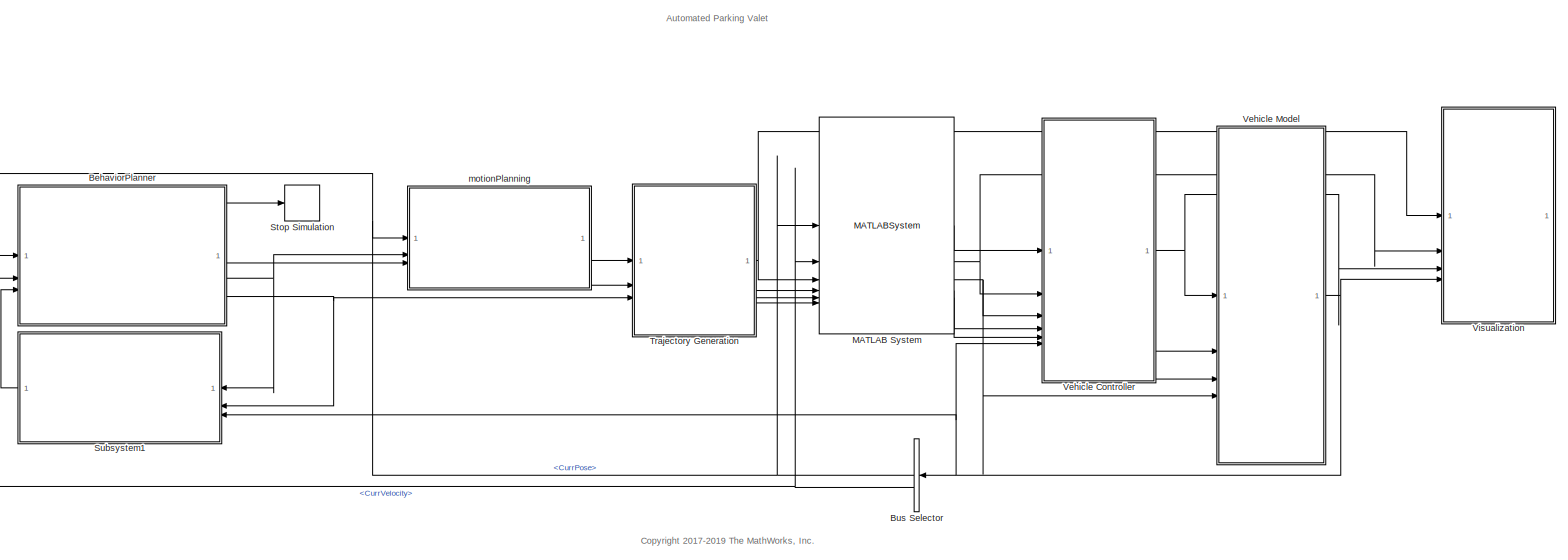
[diagram: root canvas - part 1/1, most of the canvas]
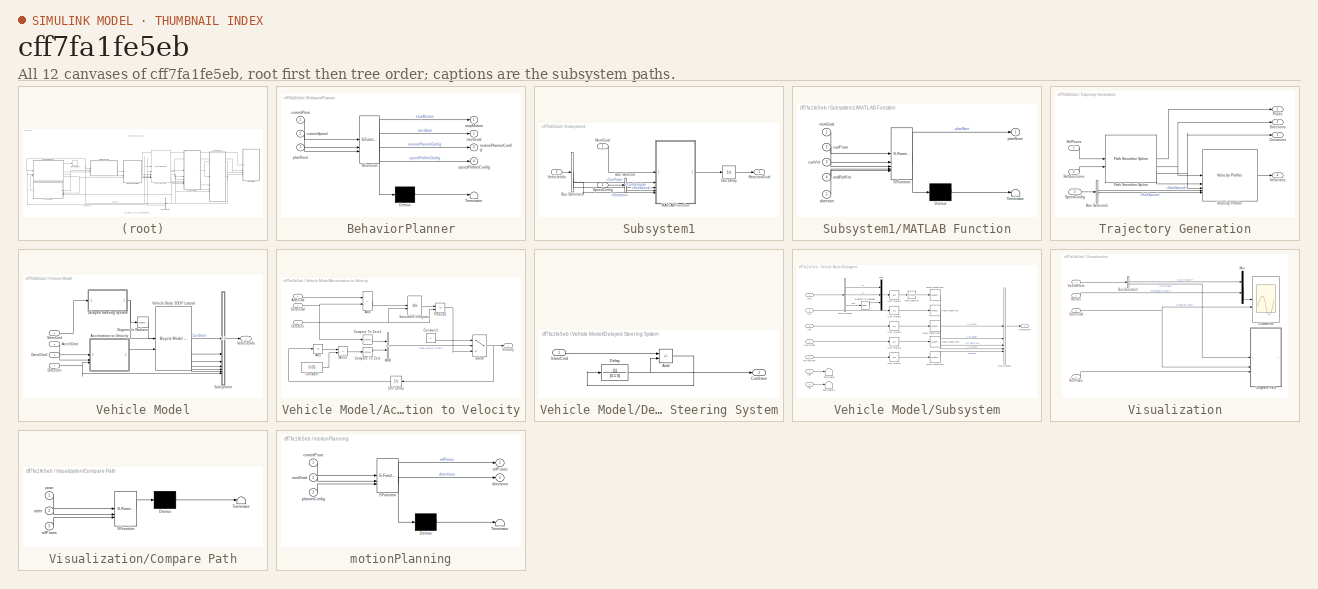
[diagram: thumbnail index - all 12 canvases of the model, root first then tree order]
MODEL slx_cff7fa1fe5eb
KIND model
CONFIG AbsTol = auto
CONFIG EnableMultiTasking = off
CONFIG FixedStep = 1e-3
CONFIG MaxStep = 1e-2
CONFIG MinStep = 1e-3
CONFIG PreLoadFcn = costmap = helperSLCreateCostmap();\nrouteData= load('routePlanSL.mat');\nroutePlan= routeData.routePlan;\nstartPose = routePlan.StartPose(1, :);\ncenterToFront = 1.4;\ncenterToRear = 1.4;\nhelperSLCreateUtilityBus;
CONFIG RelTol = 5e-3
CONFIG SampleTimeConstraint = Unconstrained
CONFIG SolverName = ode23tb
CONFIG StartTime = 0.0
CONFIG StopFcn = clear helperSLVisualizePath
CONFIG StopTime = inf
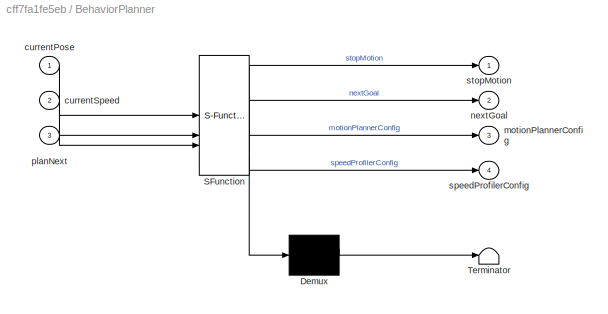
BLOCK [SubSystem] BehaviorPlanner
  ErrorFcn = Stateflow.Translate.translate
  PermitHierarchicalResolution = ExplicitOnly
  SFBlockType = MATLAB Function
  TreatAsAtomicUnit = on
BLOCK [Demux] BehaviorPlanner/ Demux 
  Outputs = 1
BLOCK [S-Function] BehaviorPlanner/ SFunction 
  EnableBusSupport = off
  FunctionName = sf_sfun
  Parameters = StartSpeed,routePlanStruct,startPose
  PortCounts = [3 5]
  SFcnIsStateOwnerBlock = off
  SFunctionDeploymentMode = off
  Tag = Stateflow S-Function 7
BLOCK [Terminator] BehaviorPlanner/ Terminator 
BLOCK [Inport] BehaviorPlanner/currentPose
BLOCK [Inport] BehaviorPlanner/currentSpeed
  Port = 2
BLOCK [Outport] BehaviorPlanner/motionPlannerConfig
  Port = 3
  VectorParamsAs1DForOutWhenUnconnected = off
BLOCK [Outport] BehaviorPlanner/nextGoal
  Port = 2
  VectorParamsAs1DForOutWhenUnconnected = off
BLOCK [Inport] BehaviorPlanner/planNext
  Port = 3
BLOCK [Outport] BehaviorPlanner/speedProfilerConfig
  Port = 4
  VectorParamsAs1DForOutWhenUnconnected = off
BLOCK [Outport] BehaviorPlanner/stopMotion
  VectorParamsAs1DForOutWhenUnconnected = off
BLOCK [BusSelector] Bus Selector
  OutputSignals = CurrPose,CurrVelocity
BLOCK [MATLABSystem] MATLAB System
  HasResetOutput = on
  MaskDisplay = disp(['Helper' char(10) 'Path' char(10) 'Analyzer']);\nport_label('input',1,'CurrPose');\nport_label('input',2,'CurrVelocity');\nport_label('input',3,'RefPoses');\nport_label('input',4,'Directions');\nport_label('input',5,'Curvatures');\nport_label('input',6,'RefVelocities');\nport_label('output',1,'RefPose');\nport_label('output',2,'RefVelocity');\nport_label('output',3,'Direction');\nport_label('output',4...<+46ch>
  MaskType = HelperPathAnalyzer
  SimulateUsing = Interpreted execution
  System = HelperPathAnalyzer
  Wheelbase = 2.8
BLOCK [Stop] Stop Simulation
BLOCK [SubSystem] Subsystem1
  MinAlgLoopOccurrences = on
  SystemSampleTime = 0.1
  TreatAsAtomicUnit = on
BLOCK [BusSelector] Subsystem1/Bus Selector
  OutputSignals = EndSpeed
BLOCK [BusSelector] Subsystem1/Bus Selector1
  OutputSignals = CurrPose,CurrVelocity,Direction
BLOCK [SubSystem] Subsystem1/MATLAB Function
  ErrorFcn = Stateflow.Translate.translate
  PermitHierarchicalResolution = ExplicitOnly
  SFBlockType = MATLAB Function
  TreatAsAtomicUnit = on
BLOCK [Demux] Subsystem1/MATLAB Function/ Demux 
  Outputs = 1
BLOCK [S-Function] Subsystem1/MATLAB Function/ SFunction 
  EnableBusSupport = off
  FunctionName = sf_sfun
  PortCounts = [5 2]
  SFcnIsStateOwnerBlock = off
  SFunctionDeploymentMode = off
  Tag = Stateflow S-Function 3
BLOCK [Terminator] Subsystem1/MATLAB Function/ Terminator 
BLOCK [Inport] Subsystem1/MATLAB Function/currPose
  Port = 2
BLOCK [Inport] Subsystem1/MATLAB Function/currVel
  Port = 3
BLOCK [Inport] Subsystem1/MATLAB Function/direction
  Port = 5
BLOCK [Inport] Subsystem1/MATLAB Function/endRefVel
  Port = 4
BLOCK [Inport] Subsystem1/MATLAB Function/nextGoal
BLOCK [Outport] Subsystem1/MATLAB Function/planNext
  VectorParamsAs1DForOutWhenUnconnected = off
BLOCK [Inport] Subsystem1/NextGoal
BLOCK [Outport] Subsystem1/ReachedGoal
  VectorParamsAs1DForOutWhenUnconnected = off
BLOCK [Inport] Subsystem1/SpeedConfig
  Port = 2
BLOCK [UnitDelay] Subsystem1/Unit Delay
  HasFrameUpgradeWarning = on
  SampleTime = -1
BLOCK [Inport] Subsystem1/VehicleInfo
  Port = 3
BLOCK [SubSystem] Trajectory Generation
BLOCK [BusSelector] Trajectory Generation/Bus Selector1
  OutputSignals = StartSpeed,EndSpeed
BLOCK [Outport] Trajectory Generation/Curvatures
  Port = 3
  VectorParamsAs1DForOutWhenUnconnected = off
BLOCK [Outport] Trajectory Generation/Directions
  Port = 2
  VectorParamsAs1DForOutWhenUnconnected = off
BLOCK [Reference] Trajectory Generation/Path Smoother Spline  REF=drivinglib/Path Smoother Spline
  SourceBlock = drivinglib/Path Smoother Spline
  SourceType = driving.internal.planning.PathSmootherSpline
BLOCK [Outport] Trajectory Generation/Poses
  VectorParamsAs1DForOutWhenUnconnected = off
BLOCK [Inport] Trajectory Generation/RefDirections
  Port = 2
BLOCK [Inport] Trajectory Generation/RefPoses
BLOCK [Inport] Trajectory Generation/SpeedConfig
  Port = 3
BLOCK [Outport] Trajectory Generation/Velocities
  Port = 4
  VectorParamsAs1DForOutWhenUnconnected = off
BLOCK [Reference] Trajectory Generation/Velocity Profiler  REF=drivinglib/Velocity Profiler
  SourceBlock = drivinglib/Velocity Profiler
  SourceType = driving.internal.planning.VelocityProfiler
BLOCK [ModelReference] Vehicle Controller
  ModelNameDialog = StanleyRefMdl
  ModelReferenceVersion = 1.948
BLOCK [SubSystem] Vehicle Model
BLOCK [Inport] Vehicle Model/AccelCmd
  Port = 2
BLOCK [SubSystem] Vehicle Model/Acceleration to Velocity
  TreatAsAtomicUnit = on
BLOCK [Logic] Vehicle Model/Acceleration to Velocity/AND
  AllPortsSameDT = off
  IconShape = distinctive
  OutDataTypeStr = boolean
BLOCK [Abs] Vehicle Model/Acceleration to Velocity/Abs
  SaturateOnIntegerOverflow = off
BLOCK [Inport] Vehicle Model/Acceleration to Velocity/AccelCmd
  PortDimensions = [1 1]
BLOCK [Sum] Vehicle Model/Acceleration to Velocity/Add
  IconShape = rectangular
  Inputs = +-
BLOCK [Reference] Vehicle Model/Acceleration to Velocity/Compare To Zero  REF=simulink/Logic and Bit
Operations/Compare
To Zero
  SourceBlock = simulink/Logic and Bit\nOperations/Compare\nTo Zero
  SourceType = Compare To Zero
BLOCK [Reference] Vehicle Model/Acceleration to Velocity/Compare To Zero1  REF=simulink/Logic and Bit
Operations/Compare
To Zero
  SourceBlock = simulink/Logic and Bit\nOperations/Compare\nTo Zero
  SourceType = Compare To Zero
BLOCK [Constant] Vehicle Model/Acceleration to Velocity/Constant
  Value = 0.05
BLOCK [Constant] Vehicle Model/Acceleration to Velocity/Constant1
  Value = 0
BLOCK [Inport] Vehicle Model/Acceleration to Velocity/DecelCmd
  Port = 2
  PortDimensions = [1 1]
BLOCK [Inport] Vehicle Model/Acceleration to Velocity/Direction
  Port = 3
BLOCK [Sum] Vehicle Model/Acceleration to Velocity/Minus
  IconShape = rectangular
  Inputs = +-
BLOCK [Product] Vehicle Model/Acceleration to Velocity/Product1
BLOCK [Integrator] Vehicle Model/Acceleration to Velocity/Saturated integrator
  AbsoluteTolerance = 1e-3
  ExternalReset = either
  LimitOutput = on
  LowerSaturationLimit = 0
  ZeroCross = off
BLOCK [Switch] Vehicle Model/Acceleration to Velocity/Switch
  Criteria = u2 > Threshold
  InputSameDT = off
  SaturateOnIntegerOverflow = off
BLOCK [UnitDelay] Vehicle Model/Acceleration to Velocity/Unit Delay
  HasFrameUpgradeWarning = on
  SampleTime = -1
BLOCK [Outport] Vehicle Model/Acceleration to Velocity/Velocity
  VectorParamsAs1DForOutWhenUnconnected = off
BLOCK [Inport] Vehicle Model/DecelCmd
  Port = 3
BLOCK [Reference] Vehicle Model/Degrees to Radians  REF=simulink_extras/Transformations/Degrees to
Radians
  SourceBlock = simulink_extras/Transformations/Degrees to\nRadians
  SourceType = DegreesToRadians
BLOCK [SubSystem] Vehicle Model/Delayed Steering System
BLOCK [Sum] Vehicle Model/Delayed Steering System/Add
  IconShape = rectangular
  Inputs = +-
BLOCK [Outport] Vehicle Model/Delayed Steering System/CurrSteer
  VectorParamsAs1DForOutWhenUnconnected = off
BLOCK [TransferFcn] Vehicle Model/Delayed Steering System/Delay
  Denominator = [0.1 0]
BLOCK [Inport] Vehicle Model/Delayed Steering System/SteerCmd
BLOCK [Inport] Vehicle Model/Direction
  Port = 4
BLOCK [Inport] Vehicle Model/SteerCmd
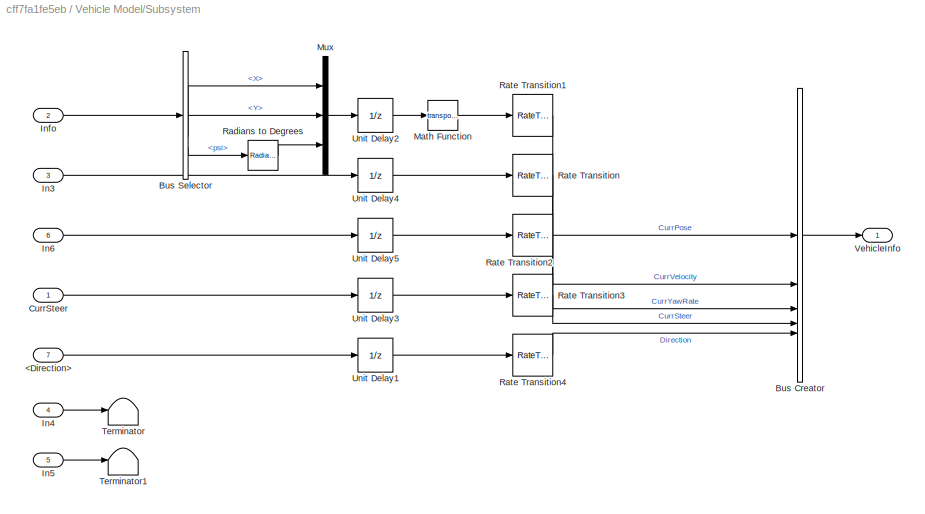
BLOCK [SubSystem] Vehicle Model/Subsystem
BLOCK [Inport] Vehicle Model/Subsystem/<Direction>
  Port = 7
BLOCK [BusCreator] Vehicle Model/Subsystem/Bus Creator
  DisplayOption = bar
  InheritFromInputs = on
  Inputs = 5
  NonVirtualBus = on
  OutDataTypeStr = Bus: vehicleInfoBus
BLOCK [BusSelector] Vehicle Model/Subsystem/Bus Selector
  OutputSignals = InertFrm.RearAxl.Disp.X,InertFrm.RearAxl.Disp.Y,InertFrm.Cg.Ang.psi
BLOCK [Inport] Vehicle Model/Subsystem/CurrSteer
BLOCK [Inport] Vehicle Model/Subsystem/In3
  Port = 3
BLOCK [Inport] Vehicle Model/Subsystem/In4
  Port = 4
BLOCK [Inport] Vehicle Model/Subsystem/In5
  Port = 5
BLOCK [Inport] Vehicle Model/Subsystem/In6
  Port = 6
BLOCK [Inport] Vehicle Model/Subsystem/Info
  Port = 2
BLOCK [Math] Vehicle Model/Subsystem/Math Function
  Operator = transpose
  SignedPower = on
BLOCK [Mux] Vehicle Model/Subsystem/Mux
  DisplayOption = bar
  Inputs = 3
BLOCK [Reference] Vehicle Model/Subsystem/Radians to Degrees  REF=simulink_extras/Transformations/Radians
to Degrees
  SourceBlock = simulink_extras/Transformations/Radians\nto Degrees
  SourceType = RadiansToDegrees
BLOCK [RateTransition] Vehicle Model/Subsystem/Rate Transition
  OutPortSampleTime = 0.05
BLOCK [RateTransition] Vehicle Model/Subsystem/Rate Transition1
  InitialCondition = startPose
  OutPortSampleTime = 0.05
BLOCK [RateTransition] Vehicle Model/Subsystem/Rate Transition2
  OutPortSampleTime = 0.05
BLOCK [RateTransition] Vehicle Model/Subsystem/Rate Transition3
  OutPortSampleTime = 0.05
BLOCK [RateTransition] Vehicle Model/Subsystem/Rate Transition4
  InitialCondition = 1
  OutPortSampleTime = 0.05
BLOCK [Terminator] Vehicle Model/Subsystem/Terminator
BLOCK [Terminator] Vehicle Model/Subsystem/Terminator1
BLOCK [UnitDelay] Vehicle Model/Subsystem/Unit Delay1
  HasFrameUpgradeWarning = on
  InitialCondition = 1
  SampleTime = -1
BLOCK [UnitDelay] Vehicle Model/Subsystem/Unit Delay2
  HasFrameUpgradeWarning = on
  InitialCondition = startPose
  SampleTime = -1
BLOCK [UnitDelay] Vehicle Model/Subsystem/Unit Delay3
  HasFrameUpgradeWarning = on
  SampleTime = -1
BLOCK [UnitDelay] Vehicle Model/Subsystem/Unit Delay4
  HasFrameUpgradeWarning = on
  SampleTime = -1
BLOCK [UnitDelay] Vehicle Model/Subsystem/Unit Delay5
  HasFrameUpgradeWarning = on
  SampleTime = -1
BLOCK [Outport] Vehicle Model/Subsystem/VehicleInfo
  VectorParamsAs1DForOutWhenUnconnected = off
BLOCK [Reference] Vehicle Model/Vehicle Body 3DOF Lateral  REF=autolibshared/Bicycle Model - Velocity Input
  SourceBlock = autolibshared/Bicycle Model - Velocity Input
  SourceType = Vehicle Body 3DOF Lateral
BLOCK [Outport] Vehicle Model/VehicleInfo
  VectorParamsAs1DForOutWhenUnconnected = off
BLOCK [SubSystem] Visualization
BLOCK [BusSelector] Visualization/Bus Selector1
  OutputSignals = CurrVelocity,CurrPose
BLOCK [Scope] Visualization/Commands
  Floating = off
  NumInputPorts = 2
  ScopeSpecificationString = Simulink.scopes.TimeScopeBlockCfg('CurrentConfiguration', extmgr.ConfigurationSet(extmgr.Configuration('Core','General UI',true,'ShowStatusbar',false),extmgr.Configuration('Core','Source UI',true),extmgr.Configuration('Sources','WiredSimulink',true,'DataLoggingVariableName','ScopeData1'),extmgr.Configuration('Visuals','Time Domain',true,'SerializedDisplays',{struct('MinYLimReal','-0.89914','MaxYLi...<+2129ch>
BLOCK [SubSystem] Visualization/Compare Path
  ErrorFcn = Stateflow.Translate.translate
  PermitHierarchicalResolution = ExplicitOnly
  SFBlockType = MATLAB Function
  TreatAsAtomicUnit = on
BLOCK [Demux] Visualization/Compare Path/ Demux 
  Outputs = 1
BLOCK [S-Function] Visualization/Compare Path/ SFunction 
  EnableBusSupport = off
  FunctionName = sf_sfun
  Parameters = costmapStruct,vehicleDimsStruct
  PortCounts = [3 1]
  SFcnIsStateOwnerBlock = off
  SFunctionDeploymentMode = off
  Tag = Stateflow S-Function 6
BLOCK [Terminator] Visualization/Compare Path/ Terminator 
BLOCK [Inport] Visualization/Compare Path/pose
BLOCK [Inport] Visualization/Compare Path/refPoses
  Port = 3
BLOCK [Inport] Visualization/Compare Path/steer
  Port = 2
BLOCK [Mux] Visualization/Mux
  DisplayOption = bar
  Inputs = 2
BLOCK [Inport] Visualization/RefPoses
BLOCK [Inport] Visualization/RefVel
  Port = 2
BLOCK [Inport] Visualization/SteerCmd
  Port = 3
BLOCK [Inport] Visualization/VehicleInfo
  Port = 4
BLOCK [SubSystem] motionPlanning
  ErrorFcn = Stateflow.Translate.translate
  PermitHierarchicalResolution = ExplicitOnly
  SFBlockType = MATLAB Function
  TreatAsAtomicUnit = on
BLOCK [Demux] motionPlanning/ Demux 
  Outputs = 1
BLOCK [S-Function] motionPlanning/ SFunction 
  EnableBusSupport = off
  FunctionName = sf_sfun
  Parameters = costmapStruct,vehicleDimsStruct
  PortCounts = [3 3]
  SFcnIsStateOwnerBlock = off
  SFunctionDeploymentMode = off
  Tag = Stateflow S-Function 2
BLOCK [Terminator] motionPlanning/ Terminator 
BLOCK [Inport] motionPlanning/currentPose
BLOCK [Outport] motionPlanning/directions
  Port = 2
  VectorParamsAs1DForOutWhenUnconnected = off
BLOCK [Inport] motionPlanning/nextGoal
  Port = 2
BLOCK [Inport] motionPlanning/plannerConfig
  Port = 3
BLOCK [Outport] motionPlanning/refPoses
  VectorParamsAs1DForOutWhenUnconnected = off
ANNOTATION (root): Automated Parking Valet
ANNOTATION (root): <copyright redacted>
LINE BehaviorPlanner:1 -> Stop Simulation:1
NET BehaviorPlanner:2 -> Subsystem1:1, motionPlanning:2
LINE BehaviorPlanner:3 -> motionPlanning:3
NET BehaviorPlanner:4 -> Subsystem1:2, Trajectory Generation:3
NET Bus Selector:1 -> BehaviorPlanner:1, MATLAB System:1, motionPlanning:1
NET Bus Selector:2 -> BehaviorPlanner:2, MATLAB System:2
LINE MATLAB System:1 -> Vehicle Controller:1
NET MATLAB System:2 -> Vehicle Controller:2, Visualization:2
NET MATLAB System:3 -> Vehicle Controller:3, Vehicle Model:4
LINE MATLAB System:4 -> Vehicle Controller:4
LINE MATLAB System:5 -> Vehicle Controller:5
LINE Subsystem1/Bus Selector1:1 -> Subsystem1/MATLAB Function:2
LINE Subsystem1/Bus Selector1:2 -> Subsystem1/MATLAB Function:3
LINE Subsystem1/Bus Selector1:3 -> Subsystem1/MATLAB Function:5
LINE Subsystem1/Bus Selector:1 -> Subsystem1/MATLAB Function:4
LINE Subsystem1/MATLAB Function:1 -> Subsystem1/Unit Delay:1
LINE Subsystem1/NextGoal:1 -> Subsystem1/MATLAB Function:1
LINE Subsystem1/SpeedConfig:1 -> Subsystem1/Bus Selector:1
LINE Subsystem1/Unit Delay:1 -> Subsystem1/ReachedGoal:1
LINE Subsystem1/VehicleInfo:1 -> Subsystem1/Bus Selector1:1
LINE Subsystem1:1 -> BehaviorPlanner:3
LINE Trajectory Generation/Bus Selector1:1 -> Trajectory Generation/Velocity Profiler:4
LINE Trajectory Generation/Bus Selector1:2 -> Trajectory Generation/Velocity Profiler:5
LINE Trajectory Generation/Path Smoother Spline:1 -> Trajectory Generation/Poses:1
NET Trajectory Generation/Path Smoother Spline:2 -> Trajectory Generation/Directions:1, Trajectory Generation/Velocity Profiler:1
LINE Trajectory Generation/Path Smoother Spline:3 -> Trajectory Generation/Velocity Profiler:2
NET Trajectory Generation/Path Smoother Spline:4 -> Trajectory Generation/Curvatures:1, Trajectory Generation/Velocity Profiler:3
LINE Trajectory Generation/RefDirections:1 -> Trajectory Generation/Path Smoother Spline:2
LINE Trajectory Generation/RefPoses:1 -> Trajectory Generation/Path Smoother Spline:1
LINE Trajectory Generation/SpeedConfig:1 -> Trajectory Generation/Bus Selector1:1
LINE Trajectory Generation/Velocity Profiler:1 -> Trajectory Generation/Velocities:1
NET Trajectory Generation:1 -> MATLAB System:3, Visualization:1
LINE Trajectory Generation:2 -> MATLAB System:4
LINE Trajectory Generation:3 -> MATLAB System:5
LINE Trajectory Generation:4 -> MATLAB System:6
NET Vehicle Controller:1 -> Vehicle Model:1, Visualization:3
LINE Vehicle Controller:2 -> Vehicle Model:2
LINE Vehicle Controller:3 -> Vehicle Model:3
LINE Vehicle Model/AccelCmd:1 -> Vehicle Model/Acceleration to Velocity:1
LINE Vehicle Model/Acceleration to Velocity/AND:1 -> Vehicle Model/Acceleration to Velocity/Switch:2
LINE Vehicle Model/Acceleration to Velocity/Abs:1 -> Vehicle Model/Acceleration to Velocity/Minus:1
LINE Vehicle Model/Acceleration to Velocity/AccelCmd:1 -> Vehicle Model/Acceleration to Velocity/Add:1
LINE Vehicle Model/Acceleration to Velocity/Add:1 -> Vehicle Model/Acceleration to Velocity/Saturated integrator:1
LINE Vehicle Model/Acceleration to Velocity/Compare To Zero1:1 -> Vehicle Model/Acceleration to Velocity/AND:1
LINE Vehicle Model/Acceleration to Velocity/Compare To Zero:1 -> Vehicle Model/Acceleration to Velocity/AND:2
LINE Vehicle Model/Acceleration to Velocity/Constant1:1 -> Vehicle Model/Acceleration to Velocity/Switch:1
LINE Vehicle Model/Acceleration to Velocity/Constant:1 -> Vehicle Model/Acceleration to Velocity/Minus:2
NET Vehicle Model/Acceleration to Velocity/DecelCmd:1 -> Vehicle Model/Acceleration to Velocity/Add:2, Vehicle Model/Acceleration to Velocity/Compare To Zero1:1
NET Vehicle Model/Acceleration to Velocity/Direction:1 -> Vehicle Model/Acceleration to Velocity/Product1:2, Vehicle Model/Acceleration to Velocity/Saturated integrator:2
LINE Vehicle Model/Acceleration to Velocity/Minus:1 -> Vehicle Model/Acceleration to Velocity/Compare To Zero:1
LINE Vehicle Model/Acceleration to Velocity/Product1:1 -> Vehicle Model/Acceleration to Velocity/Switch:3
LINE Vehicle Model/Acceleration to Velocity/Saturated integrator:1 -> Vehicle Model/Acceleration to Velocity/Product1:1
NET Vehicle Model/Acceleration to Velocity/Switch:1 -> Vehicle Model/Acceleration to Velocity/Unit Delay:1, Vehicle Model/Acceleration to Velocity/Velocity:1
LINE Vehicle Model/Acceleration to Velocity/Unit Delay:1 -> Vehicle Model/Acceleration to Velocity/Abs:1
LINE Vehicle Model/Acceleration to Velocity:1 -> Vehicle Model/Vehicle Body 3DOF Lateral:2
LINE Vehicle Model/DecelCmd:1 -> Vehicle Model/Acceleration to Velocity:2
LINE Vehicle Model/Degrees to Radians:1 -> Vehicle Model/Vehicle Body 3DOF Lateral:1
LINE Vehicle Model/Delayed Steering System/Add:1 -> Vehicle Model/Delayed Steering System/Delay:1
NET Vehicle Model/Delayed Steering System/Delay:1 -> Vehicle Model/Delayed Steering System/Add:2, Vehicle Model/Delayed Steering System/CurrSteer:1
LINE Vehicle Model/Delayed Steering System/SteerCmd:1 -> Vehicle Model/Delayed Steering System/Add:1
NET Vehicle Model/Delayed Steering System:1 -> Vehicle Model/Degrees to Radians:1, Vehicle Model/Subsystem:1
NET Vehicle Model/Direction:1 -> Vehicle Model/Acceleration to Velocity:3, Vehicle Model/Subsystem:7
LINE Vehicle Model/SteerCmd:1 -> Vehicle Model/Delayed Steering System:1
LINE Vehicle Model/Subsystem/<Direction>:1 -> Vehicle Model/Subsystem/Unit Delay1:1
LINE Vehicle Model/Subsystem/Bus Creator:1 -> Vehicle Model/Subsystem/VehicleInfo:1
LINE Vehicle Model/Subsystem/Bus Selector:1 -> Vehicle Model/Subsystem/Mux:1
LINE Vehicle Model/Subsystem/Bus Selector:2 -> Vehicle Model/Subsystem/Mux:2
LINE Vehicle Model/Subsystem/Bus Selector:3 -> Vehicle Model/Subsystem/Radians to Degrees:1
LINE Vehicle Model/Subsystem/CurrSteer:1 -> Vehicle Model/Subsystem/Unit Delay3:1
LINE Vehicle Model/Subsystem/In3:1 -> Vehicle Model/Subsystem/Unit Delay4:1
LINE Vehicle Model/Subsystem/In4:1 -> Vehicle Model/Subsystem/Terminator:1
LINE Vehicle Model/Subsystem/In5:1 -> Vehicle Model/Subsystem/Terminator1:1
LINE Vehicle Model/Subsystem/In6:1 -> Vehicle Model/Subsystem/Unit Delay5:1
LINE Vehicle Model/Subsystem/Info:1 -> Vehicle Model/Subsystem/Bus Selector:1
LINE Vehicle Model/Subsystem/Math Function:1 -> Vehicle Model/Subsystem/Rate Transition1:1
LINE Vehicle Model/Subsystem/Mux:1 -> Vehicle Model/Subsystem/Unit Delay2:1
LINE Vehicle Model/Subsystem/Radians to Degrees:1 -> Vehicle Model/Subsystem/Mux:3
LINE Vehicle Model/Subsystem/Rate Transition1:1 -> Vehicle Model/Subsystem/Bus Creator:1
LINE Vehicle Model/Subsystem/Rate Transition2:1 -> Vehicle Model/Subsystem/Bus Creator:3
LINE Vehicle Model/Subsystem/Rate Transition3:1 -> Vehicle Model/Subsystem/Bus Creator:4
LINE Vehicle Model/Subsystem/Rate Transition4:1 -> Vehicle Model/Subsystem/Bus Creator:5
LINE Vehicle Model/Subsystem/Rate Transition:1 -> Vehicle Model/Subsystem/Bus Creator:2
LINE Vehicle Model/Subsystem/Unit Delay1:1 -> Vehicle Model/Subsystem/Rate Transition4:1
LINE Vehicle Model/Subsystem/Unit Delay2:1 -> Vehicle Model/Subsystem/Math Function:1
LINE Vehicle Model/Subsystem/Unit Delay3:1 -> Vehicle Model/Subsystem/Rate Transition3:1
LINE Vehicle Model/Subsystem/Unit Delay4:1 -> Vehicle Model/Subsystem/Rate Transition:1
LINE Vehicle Model/Subsystem/Unit Delay5:1 -> Vehicle Model/Subsystem/Rate Transition2:1
LINE Vehicle Model/Subsystem:1 -> Vehicle Model/VehicleInfo:1
LINE Vehicle Model/Vehicle Body 3DOF Lateral:1 -> Vehicle Model/Subsystem:2
LINE Vehicle Model/Vehicle Body 3DOF Lateral:2 -> Vehicle Model/Subsystem:3
LINE Vehicle Model/Vehicle Body 3DOF Lateral:3 -> Vehicle Model/Subsystem:4
LINE Vehicle Model/Vehicle Body 3DOF Lateral:4 -> Vehicle Model/Subsystem:5
LINE Vehicle Model/Vehicle Body 3DOF Lateral:5 -> Vehicle Model/Subsystem:6
NET Vehicle Model:1 -> Bus Selector:1, Subsystem1:3, Vehicle Controller:6, Visualization:4
LINE Visualization/Bus Selector1:1 -> Visualization/Mux:1
LINE Visualization/Bus Selector1:2 -> Visualization/Compare Path:1
LINE Visualization/Mux:1 -> Visualization/Commands:1
LINE Visualization/RefPoses:1 -> Visualization/Compare Path:3
LINE Visualization/RefVel:1 -> Visualization/Mux:2
NET Visualization/SteerCmd:1 -> Visualization/Commands:2, Visualization/Compare Path:2
LINE Visualization/VehicleInfo:1 -> Visualization/Bus Selector1:1
LINE motionPlanning:1 -> Trajectory Generation:1
LINE motionPlanning:2 -> Trajectory Generation:2
note: NET lines group one-source signal fan-out (src -> all destinations, sorted); 1:1 wires keep LINE
CHART motionPlanning states=1 transitions=1
  STATE_LABEL 'eML_blk_kernel()'
  STATE_LABEL 'SCRIPT:\nfunction [refPoses, directions] = motionPlanning(currentPose, nextGoal, ...\n    plannerConfig, costmapStruct, vehicleDimsStruct)\n\n%motionPlanning plan a feasible path using pathPlannerRRT.\n\n%#codegen\n\npersistent nextGoalPose posesInternal directionsInternal\n\n% Initialize persistent variables\nif isempty(nextGoalPose)\n    nextGoalPose = [0 0 0];\nend\n\nif isempty(posesInternal)\n    posesIntern...<+1670ch>'
CHART Subsystem1/MATLAB Function states=1 transitions=1
  STATE_LABEL 'eML_blk_kernel()'
  STATE_LABEL 'SCRIPT:\nfunction planNext = goalChecker(nextGoal, currPose, currVel, endRefVel, direction)\n\nplanNext = helperGoalChecker(nextGoal, currPose, currVel, endRefVel, direction);\n\n'
CHART Visualization/Compare Path states=1 transitions=1
  STATE_LABEL 'eML_blk_kernel()'
  STATE_LABEL "SCRIPT:\nfunction visualizePath(pose, steer, refPoses, costmapStruct, vehicleDimsStruct)\n\n%visualizePath Display simulation results.\n\ncoder.extrinsic('helperSLVisualizePath');\n\nhelperSLVisualizePath(pose, steer, refPoses, costmapStruct, vehicleDimsStruct)"
CHART BehaviorPlanner states=1 transitions=1
  STATE_LABEL 'eML_blk_kernel()'
  STATE_LABEL 'SCRIPT:\nfunction [stopMotion, nextGoal, motionPlannerConfig, speedProfilerConfig] = ...\n    behaviorPlanning(routePlanStruct, currentPose, currentSpeed, planNext, ...\n    startPose, StartSpeed)\n\n%behaviorPlanning generate navigation tasks and configurations for the \n%   Motion Planner block and the Trajectory Generator block.\n\nnextGoal     = coder.nullcopy(zeros(1, 3)); %#ok<*NASGU>\nstopMotion   =...<+1293ch>'
CHART  states=0 transitions=0
CHART  states=0 transitions=0
CHART  states=0 transitions=0
CHART  states=0 transitions=0
